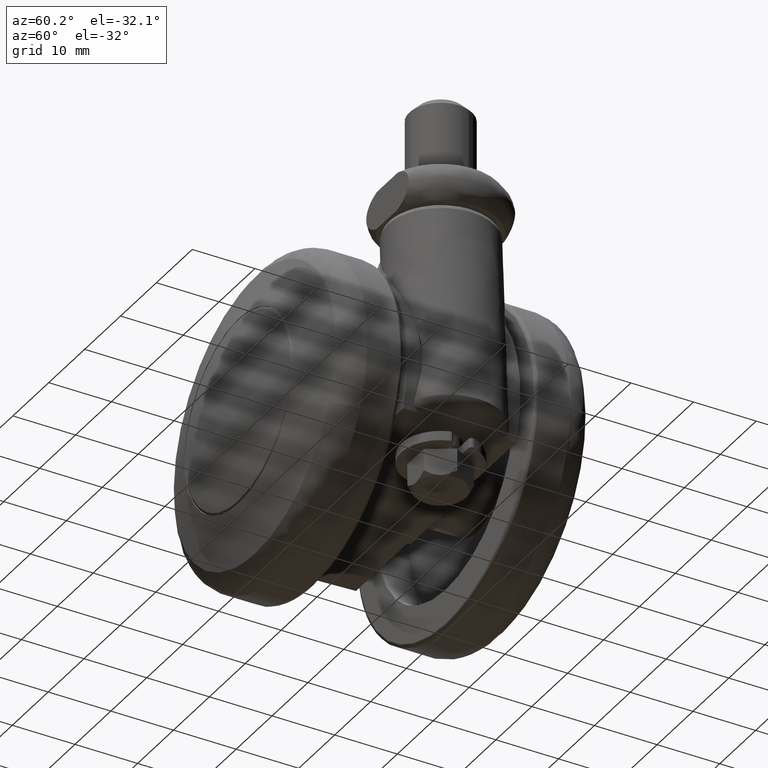
[diagram: clean part render]
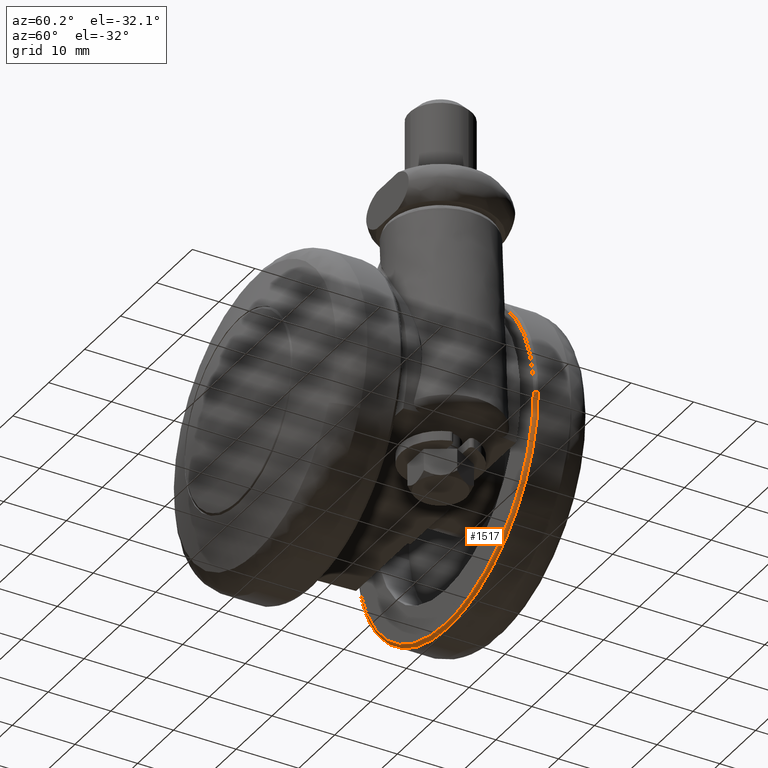
[diagram: same view with one face highlighted and labeled with its STEP entity id]
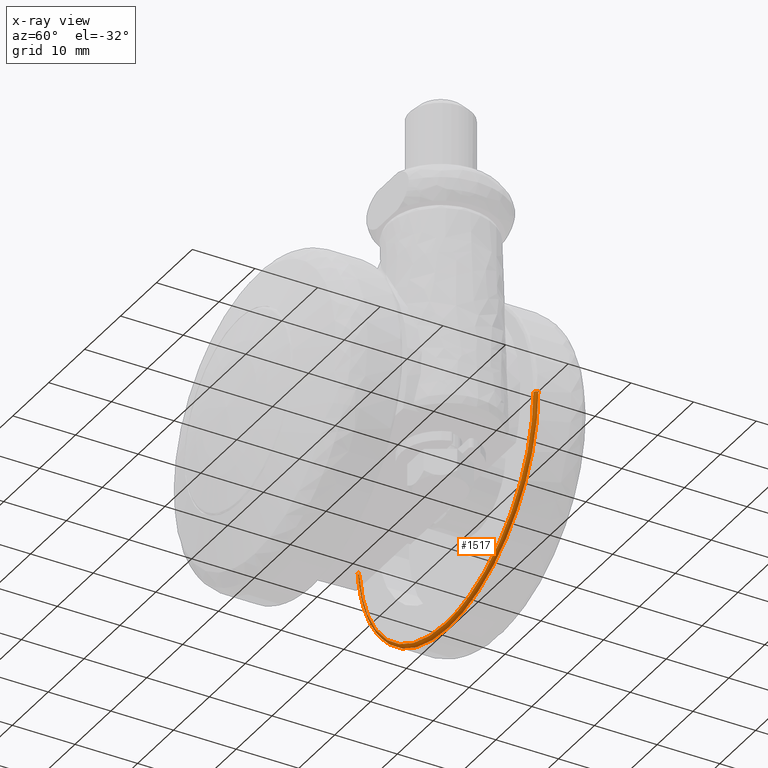
[diagram: x-ray of the same camera — body ghosted, the highlighted face saturated]
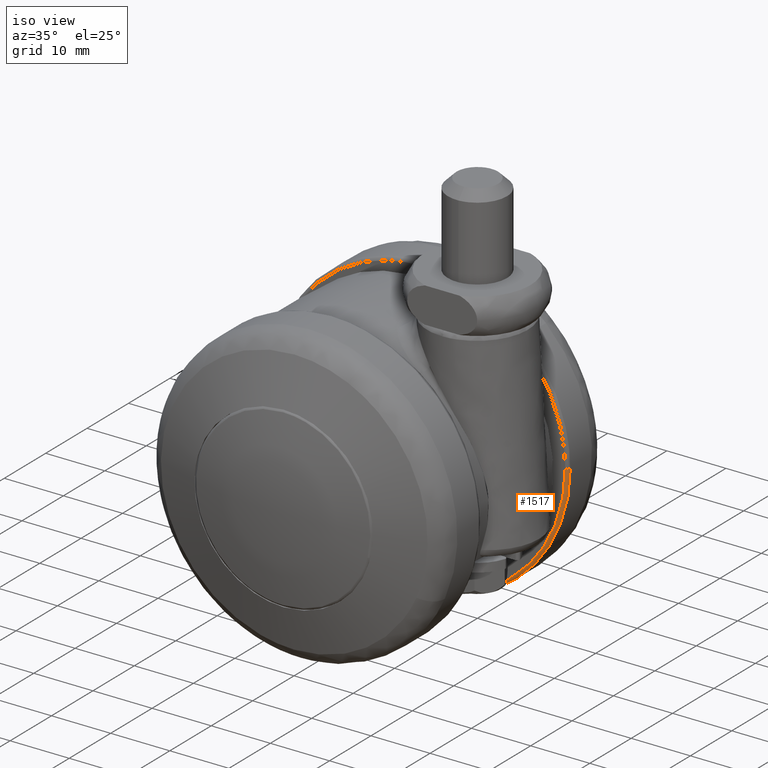
[diagram: same view with one face highlighted and labeled with its STEP entity id]
A machine part, auxiliary view. The second image highlights one B-rep face of the part: STEP entity #1517.
The next image is the same camera in x-ray: the body ghosted, the highlighted face saturated — about 0% of this face is hidden behind the body in this view.
A second angle (iso view) of the same face is appended — the face is thin or edge-on in the first view.
In plain terms, the highlighted face is a freeform B-spline surface patch.
Its self-contained STEP definition (entity closure, byte-faithful):
#859=CARTESIAN_POINT('',(-19.088892408668400,-10.999999999812241,-16.143549380798429));
#860=VERTEX_POINT('',#859);
#866=CARTESIAN_POINT('',(0.0,-11.0,-25.0));
#867=VERTEX_POINT('',#866);
#868=CARTESIAN_POINT('',(-19.088892408668404,-10.999999999812243,-16.143549380798426));
#869=CARTESIAN_POINT('',(-11.598958218209276,-11.0,-24.999999999999996));
#870=CARTESIAN_POINT('',(0.0,-11.0,-25.0));
#878=(BOUNDED_CURVE()B_SPLINE_CURVE(2,(#868,#869,#870),.UNSPECIFIED.,.F.,.U.)B_SPLINE_CURVE_WITH_KNOTS((3,3),(0.862408077222748,1.0),.UNSPECIFIED.)CURVE()GEOMETRIC_REPRESENTATION_ITEM()RATIONAL_B_SPLINE_CURVE((0.855039474730254,0.838801035420155,1.0))REPRESENTATION_ITEM(''));
#879=EDGE_CURVE('',#860,#867,#878,.T.);
#881=CARTESIAN_POINT('',(24.832790969626899,-10.999999999485651,-2.886605733178072));
#882=VERTEX_POINT('',#881);
#883=CARTESIAN_POINT('',(0.0,-11.0,-25.0));
#884=CARTESIAN_POINT('',(22.262292520671355,-10.999999999999998,-25.000000000000004));
#885=CARTESIAN_POINT('',(24.832790969626899,-10.999999999485654,-2.886605733178072));
#893=(BOUNDED_CURVE()B_SPLINE_CURVE(2,(#883,#884,#885),.UNSPECIFIED.,.F.,.U.)B_SPLINE_CURVE_WITH_KNOTS((3,3),(0.0,0.229999999999983),.UNSPECIFIED.)CURVE()GEOMETRIC_REPRESENTATION_ITEM()RATIONAL_B_SPLINE_CURVE((1.0,0.730538238691643,0.956886118190627))REPRESENTATION_ITEM(''));
#894=EDGE_CURVE('',#867,#882,#893,.T.);
#1028=CARTESIAN_POINT('',(-25.0,-10.999999999470010,3.546573E-015));
#1029=VERTEX_POINT('',#1028);
#1043=CARTESIAN_POINT('',(-25.0,-10.999999999470010,3.546573E-015));
#1044=CARTESIAN_POINT('',(-24.999999999999993,-10.999999999664070,-9.153977622731365));
#1045=CARTESIAN_POINT('',(-19.088892408668404,-10.999999999812243,-16.143549380798426));
#1053=(BOUNDED_CURVE()B_SPLINE_CURVE(2,(#1043,#1044,#1045),.UNSPECIFIED.,.F.,.U.)B_SPLINE_CURVE_WITH_KNOTS((3,3),(0.750000000000000,0.862408077222748),.UNSPECIFIED.)CURVE()GEOMETRIC_REPRESENTATION_ITEM()RATIONAL_B_SPLINE_CURVE((1.0,0.868305745766393,0.855039474730254))REPRESENTATION_ITEM(''));
#1054=EDGE_CURVE('',#1029,#860,#1053,.T.);
#1393=CARTESIAN_POINT('',(24.336135158453711,-10.500000000000000,-2.828873619561032));
#1394=VERTEX_POINT('',#1393);
#1412=CARTESIAN_POINT('',(-24.500000000183661,-10.500000000000000,3.546847E-015));
#1413=VERTEX_POINT('',#1412);
#1427=CARTESIAN_POINT('',(-24.500000000183661,-10.500000000000002,3.546847E-015));
#1428=CARTESIAN_POINT('',(-24.999999998940005,-10.500000000367328,3.497002E-015));
#1429=CARTESIAN_POINT('',(-25.0,-10.999999999470006,3.546573E-015));
#1437=(BOUNDED_CURVE()B_SPLINE_CURVE(2,(#1427,#1428,#1429),.UNSPECIFIED.,.F.,.U.)B_SPLINE_CURVE_WITH_KNOTS((3,3),(-1.736413120311833,-0.276558720197933),.UNSPECIFIED.)CURVE()GEOMETRIC_REPRESENTATION_ITEM()RATIONAL_B_SPLINE_CURVE((0.888510408789768,0.626638727763065,0.883897566369383))REPRESENTATION_ITEM(''));
#1438=EDGE_CURVE('',#1413,#1029,#1437,.T.);
#1443=CARTESIAN_POINT('',(24.336135158453715,-10.500000000000000,-2.828873619561032));
#1444=CARTESIAN_POINT('',(24.832790968605213,-10.500000016570423,-2.886605733058068));
#1445=CARTESIAN_POINT('',(24.832790969626910,-10.999999999485647,-2.886605733178072));
#1453=(BOUNDED_CURVE()B_SPLINE_CURVE(2,(#1443,#1444,#1445),.UNSPECIFIED.,.F.,.U.)B_SPLINE_CURVE_WITH_KNOTS((3,3),(-1.736413086772618,-0.276558720133518),.UNSPECIFIED.)CURVE()GEOMETRIC_REPRESENTATION_ITEM()RATIONAL_B_SPLINE_CURVE((0.850203264524946,0.599621905361615,0.845789311183094))REPRESENTATION_ITEM(''));
#1454=EDGE_CURVE('',#1394,#882,#1453,.T.);
#1459=CARTESIAN_POINT('',(-24.465323893071862,-10.501203881722894,4.967467E-015));
#1460=CARTESIAN_POINT('',(-24.465323893071869,-10.501203881722894,-24.465323893071854));
#1461=CARTESIAN_POINT('',(-2.996039E-015,-10.501203881722894,-24.465323893071862));
#1462=CARTESIAN_POINT('',(21.786167884823620,-10.501203881722892,-24.465323893071865));
#1463=CARTESIAN_POINT('',(24.301690969635029,-10.501203881722896,-2.824869768550792));
#1464=CARTESIAN_POINT('',(-25.038869747941046,-10.461331202961233,5.002585E-015));
#1465=CARTESIAN_POINT('',(-25.038869747941046,-10.461331202961235,-25.038869747941046));
#1466=CARTESIAN_POINT('',(-3.066276E-015,-10.461331202961233,-25.038869747941046));
#1467=CARTESIAN_POINT('',(22.296905708628319,-10.461331202961231,-25.038869747941046));
#1468=CARTESIAN_POINT('',(24.871400742653535,-10.461331202961235,-2.891093798666999));
#1469=CARTESIAN_POINT('',(-24.998783150040587,-11.034862146170063,5.000130E-015));
#1470=CARTESIAN_POINT('',(-24.998783150040577,-11.034862146170068,-24.998783150040577));
#1471=CARTESIAN_POINT('',(-3.061367E-015,-11.034862146170063,-24.998783150040577));
#1472=CARTESIAN_POINT('',(22.261208925883569,-11.034862146170068,-24.998783150040595));
#1473=CARTESIAN_POINT('',(24.831582258399706,-11.034862146170068,-2.886465230534078));
#1481=(BOUNDED_SURFACE()B_SPLINE_SURFACE(2,2,((#1459,#1464,#1469),(#1460,#1465,#1470),(#1461,#1466,#1471),(#1462,#1467,#1472),(#1463,#1468,#1473)),.UNSPECIFIED.,.F.,.F.,.U.)B_SPLINE_SURFACE_WITH_KNOTS((3,2,3),(3,3),(0.0,41.419340094283250,79.525132981023830),(0.0,0.911186219760398),.UNSPECIFIED.)GEOMETRIC_REPRESENTATION_ITEM()RATIONAL_B_SPLINE_SURFACE(((0.915967312822174,0.599412571295306,0.910892985869050),(0.647686698241779,0.423848693891376,0.644098607243267),(0.915967312822174,0.599412571295306,0.910892985869050),(0.669149147408211,0.437893804083691,0.665442157533330),(0.876476406355940,0.573569568541448,0.871620853335334)))REPRESENTATION_ITEM('')SURFACE());
#1482=CARTESIAN_POINT('',(0.0,-10.500000000000000,-24.500000000000000));
#1483=VERTEX_POINT('',#1482);
#1484=CARTESIAN_POINT('',(0.0,-10.500000000000000,-24.500000000000000));
#1485=CARTESIAN_POINT('',(21.817046670095717,-10.500000000000000,-24.499999999999996));
#1486=CARTESIAN_POINT('',(24.336135158453715,-10.499999999999998,-2.828873619561032));
#1494=(BOUNDED_CURVE()B_SPLINE_CURVE(2,(#1484,#1485,#1486),.UNSPECIFIED.,.F.,.U.)B_SPLINE_CURVE_WITH_KNOTS((3,3),(0.0,0.229999999998734),.UNSPECIFIED.)CURVE()GEOMETRIC_REPRESENTATION_ITEM()RATIONAL_B_SPLINE_CURVE((1.0,0.730538238693107,0.956886118188168))REPRESENTATION_ITEM(''));
#1495=EDGE_CURVE('',#1483,#1394,#1494,.T.);
#1496=ORIENTED_EDGE('',*,*,#1495,.T.);
#1497=ORIENTED_EDGE('',*,*,#1454,.T.);
#1498=ORIENTED_EDGE('',*,*,#894,.F.);
#1499=ORIENTED_EDGE('',*,*,#879,.F.);
#1500=ORIENTED_EDGE('',*,*,#1054,.F.);
#1501=ORIENTED_EDGE('',*,*,#1438,.F.);
#1502=CARTESIAN_POINT('',(-24.500000000183661,-10.500000000000000,3.546847E-015));
#1503=CARTESIAN_POINT('',(-24.499999999999993,-10.500000000000000,-24.499999999999993));
#1504=CARTESIAN_POINT('',(0.0,-10.500000000000000,-24.500000000000000));
#1512=(BOUNDED_CURVE()B_SPLINE_CURVE(2,(#1502,#1503,#1504),.UNSPECIFIED.,.F.,.U.)B_SPLINE_CURVE_WITH_KNOTS((3,3),(0.750000000000000,1.0),.UNSPECIFIED.)CURVE()GEOMETRIC_REPRESENTATION_ITEM()RATIONAL_B_SPLINE_CURVE((1.0,0.707106781186547,1.0))REPRESENTATION_ITEM(''));
#1513=EDGE_CURVE('',#1413,#1483,#1512,.T.);
#1514=ORIENTED_EDGE('',*,*,#1513,.T.);
#1515=EDGE_LOOP('',(#1496,#1497,#1498,#1499,#1500,#1501,#1514));
#1516=FACE_OUTER_BOUND('',#1515,.T.);
#1517=ADVANCED_FACE('',(#1516),#1481,.T.);